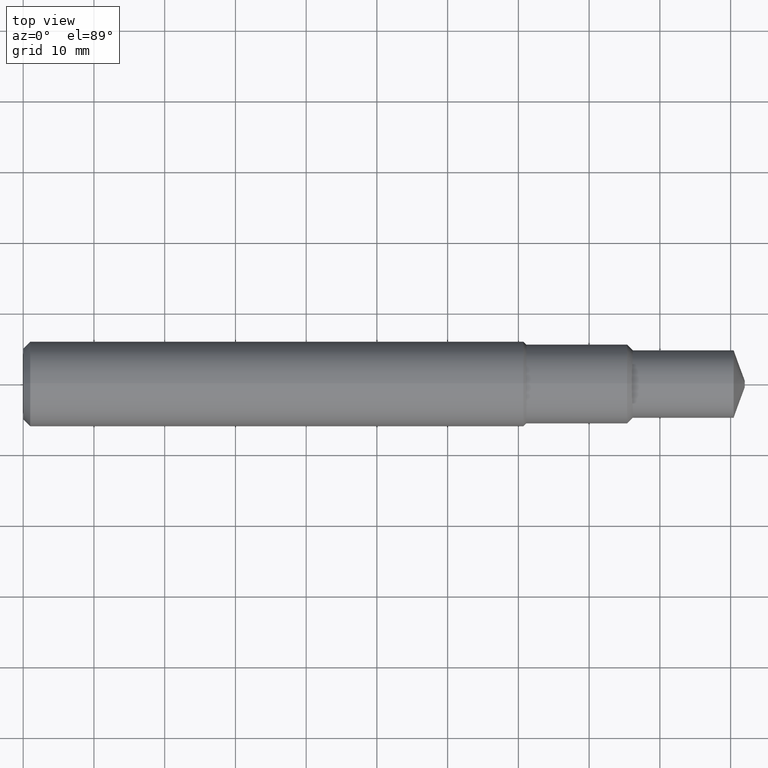
[diagram: clean part render]
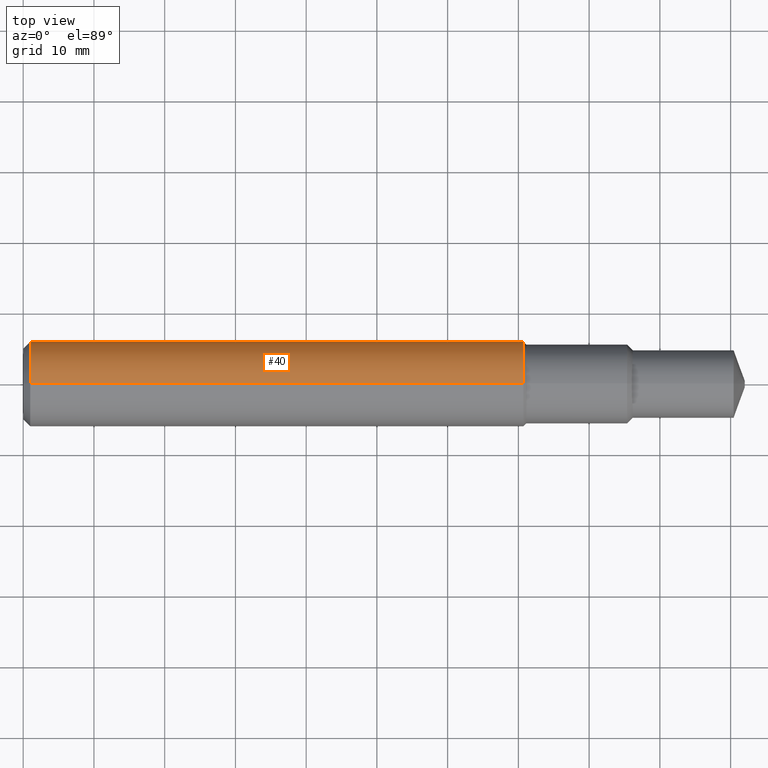
[diagram: same view with one face highlighted and labeled with its STEP entity id]
A machine part, top view. The second image highlights one B-rep face of the part: STEP entity #40.
In plain terms, the highlighted cylindrical surface (partial cylindrical patch) has radius 6 mm, axis along (1, -0, -0).
Its self-contained STEP definition (entity closure, byte-faithful):
#12 = LINE ( 'NONE', #420, #131 ) ;
#13 = DIRECTION ( 'NONE',  ( 0.000000000000000000, 0.000000000000000000, -1.000000000000000000 ) ) ;
#25 = AXIS2_PLACEMENT_3D ( 'NONE', #120, #39, #184 ) ;
#39 = DIRECTION ( 'NONE',  ( 1.000000000000000000, -0.000000000000000000, -0.000000000000000000 ) ) ;
#40 = ADVANCED_FACE ( 'NONE', ( #186 ), #229, .T. ) ;
#43 = CIRCLE ( 'NONE', #196, 0.2362204724409452394 ) ;
#55 = DIRECTION ( 'NONE',  ( 1.000000000000000000, -0.000000000000000000, -0.000000000000000000 ) ) ;
#58 = LINE ( 'NONE', #350, #463 ) ;
#74 = VERTEX_POINT ( 'NONE', #371 ) ;
#90 = CARTESIAN_POINT ( 'NONE',  ( 0.03937007874015747977, 2.892866454678788147E-17, 0.2362204724409449064 ) ) ;
#120 = CARTESIAN_POINT ( 'NONE',  ( -0.03808593750000075634, 0.000000000000000000, 0.000000000000000000 ) ) ;
#129 = DIRECTION ( 'NONE',  ( 1.000000000000000000, -0.000000000000000000, -0.000000000000000000 ) ) ;
#131 = VECTOR ( 'NONE', #129, 39.37007874015748143 ) ;
#139 = ORIENTED_EDGE ( 'NONE', *, *, #200, .F. ) ;
#177 = VERTEX_POINT ( 'NONE', #380 ) ;
#180 = CIRCLE ( 'NONE', #450, 0.2362204724409449064 ) ;
#184 = DIRECTION ( 'NONE',  ( 0.000000000000000000, 0.000000000000000000, -1.000000000000000000 ) ) ;
#186 = FACE_OUTER_BOUND ( 'NONE', #357, .T. ) ;
#196 = AXIS2_PLACEMENT_3D ( 'NONE', #232, #453, #13 ) ;
#200 = EDGE_CURVE ( 'NONE', #177, #74, #12, .T. ) ;
#204 = CARTESIAN_POINT ( 'NONE',  ( 0.03937007874015747977, 0.000000000000000000, 0.000000000000000000 ) ) ;
#212 = VERTEX_POINT ( 'NONE', #272 ) ;
#223 = EDGE_CURVE ( 'NONE', #74, #212, #43, .T. ) ;
#229 = CYLINDRICAL_SURFACE ( 'NONE', #25, 0.2362204724409450729 ) ;
#232 = CARTESIAN_POINT ( 'NONE',  ( 2.784040617499535131, 0.000000000000000000, 0.000000000000000000 ) ) ;
#236 = EDGE_CURVE ( 'NONE', #278, #212, #58, .T. ) ;
#272 = CARTESIAN_POINT ( 'NONE',  ( 2.784040617499535131, 0.000000000000000000, 0.2362204724409452394 ) ) ;
#276 = DIRECTION ( 'NONE',  ( 0.000000000000000000, 0.000000000000000000, -1.000000000000000000 ) ) ;
#278 = VERTEX_POINT ( 'NONE', #90 ) ;
#310 = EDGE_CURVE ( 'NONE', #177, #278, #180, .T. ) ;
#318 = DIRECTION ( 'NONE',  ( 1.000000000000000000, -0.000000000000000000, -0.000000000000000000 ) ) ;
#350 = CARTESIAN_POINT ( 'NONE',  ( -0.03808593750000075634, 2.892866454678789379E-17, 0.2362204724409450729 ) ) ;
#357 = EDGE_LOOP ( 'NONE', ( #461, #456, #394, #139 ) ) ;
#371 = CARTESIAN_POINT ( 'NONE',  ( 2.784040617499535131, 2.892866454678791228E-17, -0.2362204724409452394 ) ) ;
#380 = CARTESIAN_POINT ( 'NONE',  ( 0.03937007874015747977, 0.000000000000000000, -0.2362204724409449064 ) ) ;
#394 = ORIENTED_EDGE ( 'NONE', *, *, #223, .F. ) ;
#420 = CARTESIAN_POINT ( 'NONE',  ( -0.03808593750000075634, 0.000000000000000000, -0.2362204724409450729 ) ) ;
#450 = AXIS2_PLACEMENT_3D ( 'NONE', #204, #318, #276 ) ;
#453 = DIRECTION ( 'NONE',  ( 1.000000000000000000, -0.000000000000000000, -0.000000000000000000 ) ) ;
#456 = ORIENTED_EDGE ( 'NONE', *, *, #236, .T. ) ;
#461 = ORIENTED_EDGE ( 'NONE', *, *, #310, .T. ) ;
#463 = VECTOR ( 'NONE', #55, 39.37007874015748143 ) ;